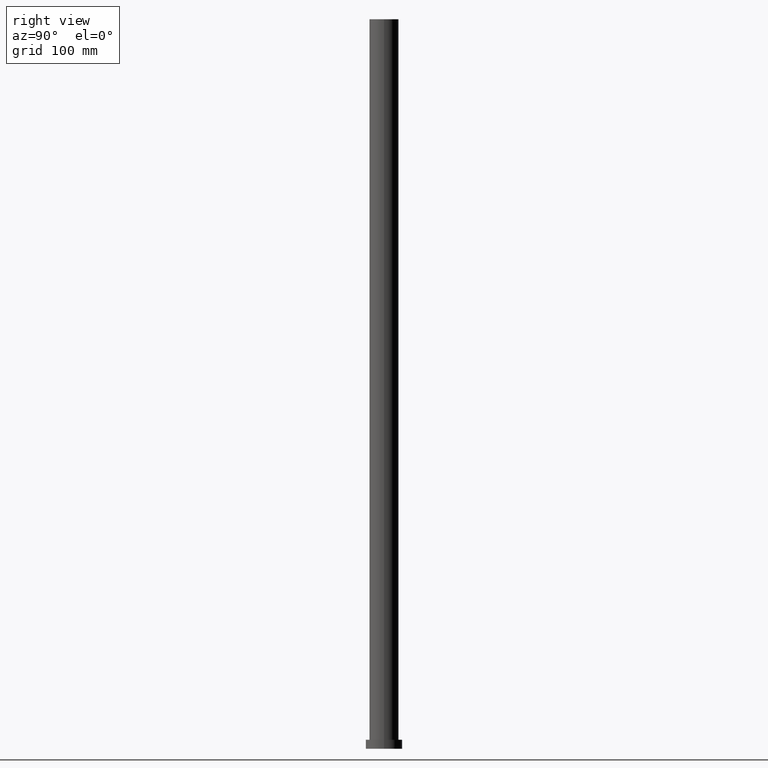
[diagram: clean part render]
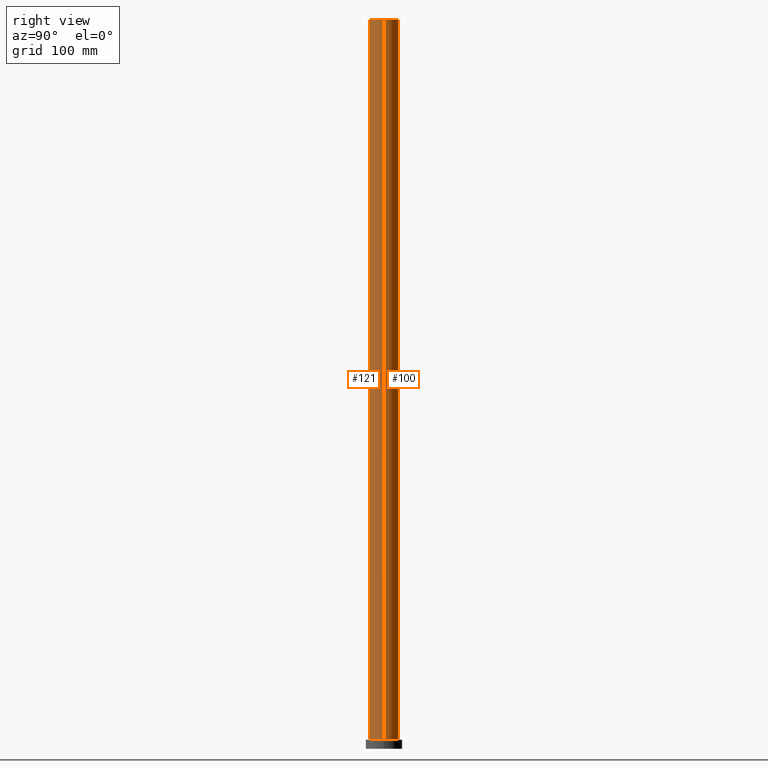
[diagram: same view with one multi-face feature highlighted, each face labeled with its STEP entity id]
A machine part, right view. The highlighted faces form ONE feature: a constant-radius fillet chain: 2 tangent blend faces with common blend radius 16 mm. The faces share edges in the B-rep.
Their STEP definitions:
[1] entity #121 (Cylinder):
#1 = CARTESIAN_POINT ( 'NONE',  ( 0.000000000000000000, 0.000000000000000000, 800.0000000000000000 ) ) ;
#4 = DIRECTION ( 'NONE',  ( 1.000000000000000000, 0.000000000000000000, 0.000000000000000000 ) ) ;
#23 = FACE_OUTER_BOUND ( 'NONE', #185, .T. ) ;
#33 = ORIENTED_EDGE ( 'NONE', *, *, #140, .T. ) ;
#34 = VERTEX_POINT ( 'NONE', #109 ) ;
#38 = DIRECTION ( 'NONE',  ( 1.000000000000000000, 0.000000000000000000, 0.000000000000000000 ) ) ;
#39 = DIRECTION ( 'NONE',  ( 0.000000000000000000, 0.000000000000000000, 1.000000000000000000 ) ) ;
#53 = VERTEX_POINT ( 'NONE', #89 ) ;
#55 = ORIENTED_EDGE ( 'NONE', *, *, #189, .F. ) ;
#67 = ORIENTED_EDGE ( 'NONE', *, *, #213, .T. ) ;
#69 = AXIS2_PLACEMENT_3D ( 'NONE', #215, #154, #178 ) ;
#78 = CARTESIAN_POINT ( 'NONE',  ( -16.00000000000000000, 0.000000000000000000, 800.0000000000000000 ) ) ;
#79 = CARTESIAN_POINT ( 'NONE',  ( 16.00000000000000000, 1.959434878635764737E-15, 800.0000000000000000 ) ) ;
#82 = CYLINDRICAL_SURFACE ( 'NONE', #69, 16.00000000000000000 ) ;
#88 = VECTOR ( 'NONE', #153, 1000.000000000000000 ) ;
#89 = CARTESIAN_POINT ( 'NONE',  ( 16.00000000000000000, 1.959434878635764737E-15, 10.00000000000000000 ) ) ;
#91 = VERTEX_POINT ( 'NONE', #221 ) ;
#98 = VECTOR ( 'NONE', #99, 1000.000000000000000 ) ;
#99 = DIRECTION ( 'NONE',  ( -0.000000000000000000, -0.000000000000000000, -1.000000000000000000 ) ) ;
#101 = LINE ( 'NONE', #79, #88 ) ;
#109 = CARTESIAN_POINT ( 'NONE',  ( -16.00000000000000000, 0.000000000000000000, 800.0000000000000000 ) ) ;
#121 = ADVANCED_FACE ( 'NONE', ( #23 ), #82, .T. ) ;
#139 = AXIS2_PLACEMENT_3D ( 'NONE', #201, #165, #38 ) ;
#140 = EDGE_CURVE ( 'NONE', #34, #148, #237, .T. ) ;
#148 = VERTEX_POINT ( 'NONE', #174 ) ;
#153 = DIRECTION ( 'NONE',  ( -0.000000000000000000, -0.000000000000000000, -1.000000000000000000 ) ) ;
#154 = DIRECTION ( 'NONE',  ( -0.000000000000000000, -0.000000000000000000, -1.000000000000000000 ) ) ;
#165 = DIRECTION ( 'NONE',  ( 0.000000000000000000, 0.000000000000000000, 1.000000000000000000 ) ) ;
#174 = CARTESIAN_POINT ( 'NONE',  ( -16.00000000000000000, 0.000000000000000000, 10.00000000000000000 ) ) ;
#178 = DIRECTION ( 'NONE',  ( -1.000000000000000000, 0.000000000000000000, 0.000000000000000000 ) ) ;
#184 = ORIENTED_EDGE ( 'NONE', *, *, #206, .F. ) ;
#185 = EDGE_LOOP ( 'NONE', ( #184, #55, #33, #67 ) ) ;
#189 = EDGE_CURVE ( 'NONE', #34, #91, #193, .T. ) ;
#191 = AXIS2_PLACEMENT_3D ( 'NONE', #1, #39, #4 ) ;
#193 = CIRCLE ( 'NONE', #191, 16.00000000000000000 ) ;
#201 = CARTESIAN_POINT ( 'NONE',  ( 0.000000000000000000, 0.000000000000000000, 10.00000000000000000 ) ) ;
#206 = EDGE_CURVE ( 'NONE', #91, #53, #101, .T. ) ;
#208 = CIRCLE ( 'NONE', #139, 16.00000000000000000 ) ;
#213 = EDGE_CURVE ( 'NONE', #148, #53, #208, .T. ) ;
#215 = CARTESIAN_POINT ( 'NONE',  ( 0.000000000000000000, 0.000000000000000000, 800.0000000000000000 ) ) ;
#221 = CARTESIAN_POINT ( 'NONE',  ( 16.00000000000000000, 1.959434878635764737E-15, 800.0000000000000000 ) ) ;
#237 = LINE ( 'NONE', #78, #98 ) ;
[2] entity #100 (Cylinder):
#5 = DIRECTION ( 'NONE',  ( -1.000000000000000000, 0.000000000000000000, 0.000000000000000000 ) ) ;
#7 = AXIS2_PLACEMENT_3D ( 'NONE', #117, #232, #5 ) ;
#24 = DIRECTION ( 'NONE',  ( 0.000000000000000000, 0.000000000000000000, 1.000000000000000000 ) ) ;
#34 = VERTEX_POINT ( 'NONE', #109 ) ;
#36 = ORIENTED_EDGE ( 'NONE', *, *, #124, .T. ) ;
#53 = VERTEX_POINT ( 'NONE', #89 ) ;
#61 = DIRECTION ( 'NONE',  ( 1.000000000000000000, 0.000000000000000000, 0.000000000000000000 ) ) ;
#74 = CARTESIAN_POINT ( 'NONE',  ( 0.000000000000000000, 0.000000000000000000, 800.0000000000000000 ) ) ;
#78 = CARTESIAN_POINT ( 'NONE',  ( -16.00000000000000000, 0.000000000000000000, 800.0000000000000000 ) ) ;
#79 = CARTESIAN_POINT ( 'NONE',  ( 16.00000000000000000, 1.959434878635764737E-15, 800.0000000000000000 ) ) ;
#88 = VECTOR ( 'NONE', #153, 1000.000000000000000 ) ;
#89 = CARTESIAN_POINT ( 'NONE',  ( 16.00000000000000000, 1.959434878635764737E-15, 10.00000000000000000 ) ) ;
#91 = VERTEX_POINT ( 'NONE', #221 ) ;
#98 = VECTOR ( 'NONE', #99, 1000.000000000000000 ) ;
#99 = DIRECTION ( 'NONE',  ( -0.000000000000000000, -0.000000000000000000, -1.000000000000000000 ) ) ;
#100 = ADVANCED_FACE ( 'NONE', ( #192 ), #176, .T. ) ;
#101 = LINE ( 'NONE', #79, #88 ) ;
#107 = ORIENTED_EDGE ( 'NONE', *, *, #206, .T. ) ;
#109 = CARTESIAN_POINT ( 'NONE',  ( -16.00000000000000000, 0.000000000000000000, 800.0000000000000000 ) ) ;
#117 = CARTESIAN_POINT ( 'NONE',  ( 0.000000000000000000, 0.000000000000000000, 800.0000000000000000 ) ) ;
#119 = ORIENTED_EDGE ( 'NONE', *, *, #235, .F. ) ;
#124 = EDGE_CURVE ( 'NONE', #53, #148, #160, .T. ) ;
#140 = EDGE_CURVE ( 'NONE', #34, #148, #237, .T. ) ;
#148 = VERTEX_POINT ( 'NONE', #174 ) ;
#151 = AXIS2_PLACEMENT_3D ( 'NONE', #74, #231, #188 ) ;
#153 = DIRECTION ( 'NONE',  ( -0.000000000000000000, -0.000000000000000000, -1.000000000000000000 ) ) ;
#160 = CIRCLE ( 'NONE', #179, 16.00000000000000000 ) ;
#164 = ORIENTED_EDGE ( 'NONE', *, *, #140, .F. ) ;
#174 = CARTESIAN_POINT ( 'NONE',  ( -16.00000000000000000, 0.000000000000000000, 10.00000000000000000 ) ) ;
#176 = CYLINDRICAL_SURFACE ( 'NONE', #7, 16.00000000000000000 ) ;
#179 = AXIS2_PLACEMENT_3D ( 'NONE', #234, #24, #61 ) ;
#188 = DIRECTION ( 'NONE',  ( 1.000000000000000000, 0.000000000000000000, 0.000000000000000000 ) ) ;
#192 = FACE_OUTER_BOUND ( 'NONE', #254, .T. ) ;
#206 = EDGE_CURVE ( 'NONE', #91, #53, #101, .T. ) ;
#221 = CARTESIAN_POINT ( 'NONE',  ( 16.00000000000000000, 1.959434878635764737E-15, 800.0000000000000000 ) ) ;
#231 = DIRECTION ( 'NONE',  ( 0.000000000000000000, 0.000000000000000000, 1.000000000000000000 ) ) ;
#232 = DIRECTION ( 'NONE',  ( -0.000000000000000000, -0.000000000000000000, -1.000000000000000000 ) ) ;
#234 = CARTESIAN_POINT ( 'NONE',  ( 0.000000000000000000, 0.000000000000000000, 10.00000000000000000 ) ) ;
#235 = EDGE_CURVE ( 'NONE', #91, #34, #242, .T. ) ;
#237 = LINE ( 'NONE', #78, #98 ) ;
#242 = CIRCLE ( 'NONE', #151, 16.00000000000000000 ) ;
#254 = EDGE_LOOP ( 'NONE', ( #119, #107, #36, #164 ) ) ;